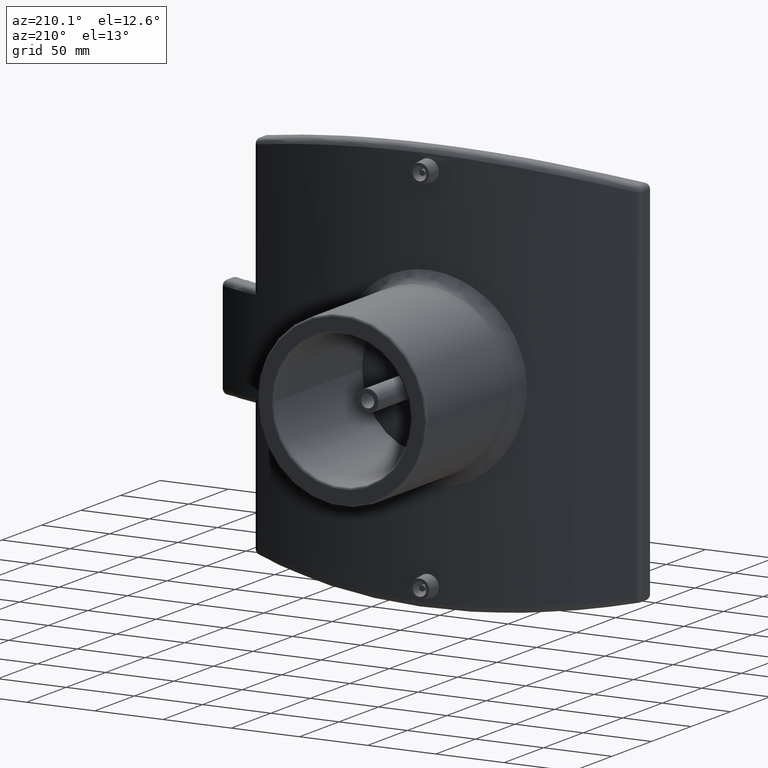
[diagram: clean part render]
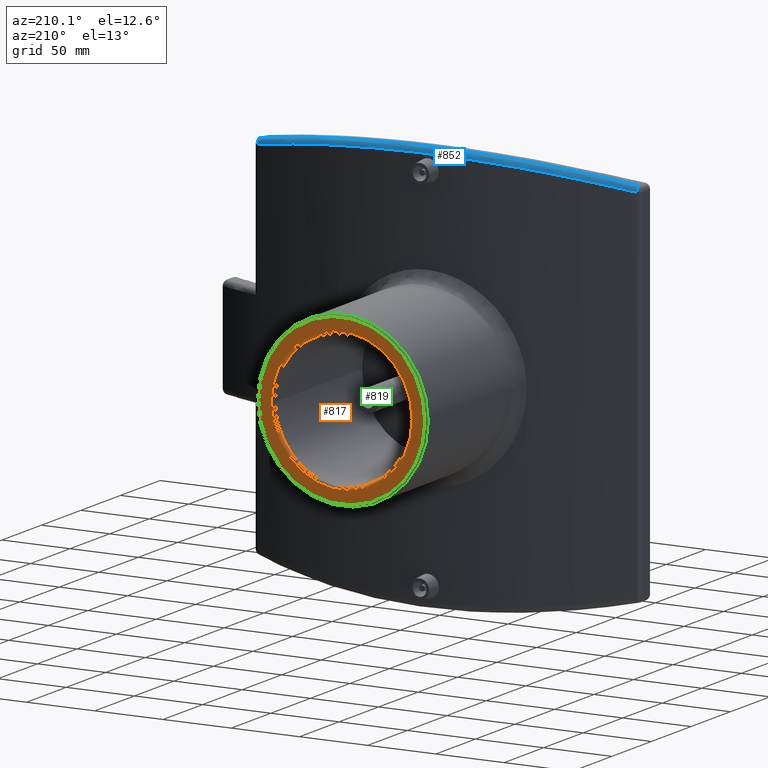
[diagram: same view with three faces highlighted in distinct colors, each labeled with its STEP entity id]
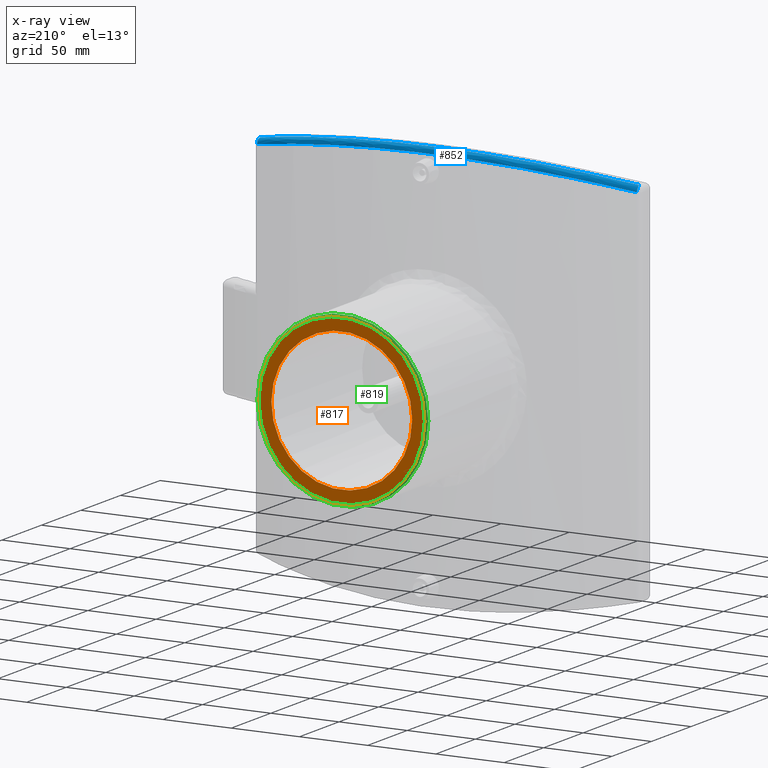
[diagram: x-ray of the same camera — body ghosted, the three highlighted faces saturated]
A machine part, auxiliary view with three faces highlighted in distinct colors.
The next image is the same camera in x-ray (body ghosted, the three faces saturated) — at least one of them is partly hidden behind the body in this view.
Their STEP definitions:

[orange] entity #817 — the highlighted planar face has unit normal (0, 1, 0).
#142=PLANE('',#887);
#157=FACE_BOUND('',#248,.T.);
#180=FACE_OUTER_BOUND('',#247,.T.);
#247=EDGE_LOOP('',(#584));
#248=EDGE_LOOP('',(#585));
#335=CIRCLE('',#886,51.6);
#336=CIRCLE('',#888,60.9);
#398=VERTEX_POINT('',#1292);
#399=VERTEX_POINT('',#1295);
#469=EDGE_CURVE('',#398,#398,#335,.T.);
#470=EDGE_CURVE('',#399,#399,#336,.T.);
#584=ORIENTED_EDGE('',*,*,#470,.F.);
#585=ORIENTED_EDGE('',*,*,#469,.F.);
#817=ADVANCED_FACE('',(#180,#157),#142,.T.);
#886=AXIS2_PLACEMENT_3D('',#1293,#1014,#1015);
#887=AXIS2_PLACEMENT_3D('',#1294,#1016,#1017);
#888=AXIS2_PLACEMENT_3D('',#1296,#1018,#1019);
#1014=DIRECTION('center_axis',(0.,1.,0.));
#1015=DIRECTION('ref_axis',(1.,0.,0.));
#1016=DIRECTION('center_axis',(0.,1.,0.));
#1017=DIRECTION('ref_axis',(0.,0.,1.));
#1018=DIRECTION('center_axis',(0.,-1.,0.));
#1019=DIRECTION('ref_axis',(1.,0.,0.));
#1292=CARTESIAN_POINT('',(-51.6,524.,6.31917748360034E-15));
#1293=CARTESIAN_POINT('Origin',(0.,524.,0.));
#1294=CARTESIAN_POINT('Origin',(2.53261750324951E-15,524.,-9.473903143468E-16));
#1295=CARTESIAN_POINT('',(-60.9,524.,-7.45809900680738E-15));
#1296=CARTESIAN_POINT('Origin',(0.,524.,0.));

[blue] entity #852 — the highlighted face is a freeform B-spline surface patch.
#91=B_SPLINE_SURFACE_WITH_KNOTS('',3,3,((#1905,#1906,#1907,#1908,#1909,
#1910,#1911,#1912,#1913,#1914),(#1915,#1916,#1917,#1918,#1919,#1920,#1921,
#1922,#1923,#1924),(#1925,#1926,#1927,#1928,#1929,#1930,#1931,#1932,#1933,
#1934),(#1935,#1936,#1937,#1938,#1939,#1940,#1941,#1942,#1943,#1944),(#1945,
#1946,#1947,#1948,#1949,#1950,#1951,#1952,#1953,#1954)),.UNSPECIFIED.,.F.,
 .F.,.F.,(4,1,4),(4,1,1,1,1,1,1,4),(0.,0.571428571428571,1.),(1.40376582378853,
5.443916145348,9.48406646690747,13.524216788467,17.5643671100264,21.6045174315859,
25.6446677531454,29.6848180747049),.UNSPECIFIED.);
#98=B_SPLINE_CURVE_WITH_KNOTS('',3,(#1570,#1571,#1572,#1573,#1574,#1575,
#1576,#1577,#1578,#1579),.UNSPECIFIED.,.F.,.F.,(4,1,1,1,1,1,1,4),(-29.6848180747049,
-25.6446677531454,-21.6045174315859,-17.5643671100264,-13.524216788467,
-9.48406646690747,-5.443916145348,-1.40376582378853),.UNSPECIFIED.);
#105=B_SPLINE_CURVE_WITH_KNOTS('',3,(#1955,#1956,#1957,#1958,#1959,#1960,
#1961,#1962,#1963,#1964),.UNSPECIFIED.,.F.,.F.,(4,1,1,1,1,1,1,4),(1.40376582378853,
5.443916145348,9.48406646690747,13.524216788467,17.5643671100264,21.6045174315859,
25.6446677531454,29.6848180747049),.UNSPECIFIED.);
#215=FACE_OUTER_BOUND('',#302,.T.);
#302=EDGE_LOOP('',(#681,#682,#683,#684));
#368=CIRCLE('',#946,4.00000000000002);
#381=CIRCLE('',#965,4.00000000000003);
#409=VERTEX_POINT('',#1567);
#410=VERTEX_POINT('',#1569);
#441=VERTEX_POINT('',#1870);
#452=VERTEX_POINT('',#1902);
#481=EDGE_CURVE('',#410,#409,#98,.T.);
#518=EDGE_CURVE('',#409,#441,#368,.F.);
#533=EDGE_CURVE('',#452,#410,#381,.F.);
#535=EDGE_CURVE('',#441,#452,#105,.T.);
#681=ORIENTED_EDGE('',*,*,#533,.T.);
#682=ORIENTED_EDGE('',*,*,#481,.T.);
#683=ORIENTED_EDGE('',*,*,#518,.T.);
#684=ORIENTED_EDGE('',*,*,#535,.T.);
#852=ADVANCED_FACE('',(#215),#91,.F.);
#946=AXIS2_PLACEMENT_3D('',#1871,#1139,#1140);
#965=AXIS2_PLACEMENT_3D('',#1903,#1179,#1180);
#1139=DIRECTION('center_axis',(-0.924407265742549,-0.328842246100135,-0.193220040943486));
#1140=DIRECTION('ref_axis',(-0.335158150851565,0.942161883074113,0.));
#1179=DIRECTION('center_axis',(0.924407265742537,-0.328842246100144,-0.193220040943531));
#1180=DIRECTION('ref_axis',(0.204598832189958,0.,0.978845911196704));
#1567=CARTESIAN_POINT('',(-139.090632603403,390.997181475756,131.757613074014));
#1569=CARTESIAN_POINT('',(139.09063260341,390.997181475753,131.757613074014));
#1570=CARTESIAN_POINT('Ctrl Pts',(139.09063260341,390.997181475753,131.757613074014));
#1571=CARTESIAN_POINT('Ctrl Pts',(126.519619840078,395.469106595822,134.359885811923));
#1572=CARTESIAN_POINT('Ctrl Pts',(100.833542230235,403.239687862746,138.939302310598));
#1573=CARTESIAN_POINT('Ctrl Pts',(61.0289804996453,411.160089339478,143.680141816067));
#1574=CARTESIAN_POINT('Ctrl Pts',(20.4299098443042,415.167026397045,146.100938434617));
#1575=CARTESIAN_POINT('Ctrl Pts',(-20.4298369698659,415.166726763724,146.100589001554));
#1576=CARTESIAN_POINT('Ctrl Pts',(-61.0304030310194,411.160253956872,143.680393743337));
#1577=CARTESIAN_POINT('Ctrl Pts',(-100.834195039831,403.239244715472,138.938929959963));
#1578=CARTESIAN_POINT('Ctrl Pts',(-126.519711970523,395.469073821974,134.359866740384));
#1579=CARTESIAN_POINT('Ctrl Pts',(-139.090632603403,390.997181475756,131.757613074014));
#1870=CARTESIAN_POINT('',(-138.568395328756,387.22853394346,135.672996718801));
#1871=CARTESIAN_POINT('Origin',(-137.749999999996,387.22853394346,131.757613074014));
#1902=CARTESIAN_POINT('',(138.568395328763,387.228533943457,135.672996718801));
#1903=CARTESIAN_POINT('Origin',(137.750000000004,387.228533943457,131.757613074014));
#1905=CARTESIAN_POINT('Ctrl Pts',(-138.568395328756,387.228533943459,135.672996718801));
#1906=CARTESIAN_POINT('Ctrl Pts',(-126.044674160055,391.657323712847,138.290710800741));
#1907=CARTESIAN_POINT('Ctrl Pts',(-100.455597472021,399.352601392913,142.896978985467));
#1908=CARTESIAN_POINT('Ctrl Pts',(-60.8012549514332,407.197263557287,147.666612582357));
#1909=CARTESIAN_POINT('Ctrl Pts',(-20.3531299898133,411.165119758772,150.1011866173));
#1910=CARTESIAN_POINT('Ctrl Pts',(20.3532025906333,411.165416504061,150.101538126402));
#1911=CARTESIAN_POINT('Ctrl Pts',(60.7998377611729,407.197100526566,147.666359158345));
#1912=CARTESIAN_POINT('Ctrl Pts',(100.4549471135,399.353040268889,142.897353548298));
#1913=CARTESIAN_POINT('Ctrl Pts',(126.044582375528,391.657356170802,138.290729985588));
#1914=CARTESIAN_POINT('Ctrl Pts',(138.568395328763,387.228533943457,135.672996718801));
#1915=CARTESIAN_POINT('Ctrl Pts',(-138.936796978407,388.309391961421,135.595993232927));
#1916=CARTESIAN_POINT('Ctrl Pts',(-126.385251652634,392.75874879433,138.22713303341));
#1917=CARTESIAN_POINT('Ctrl Pts',(-100.735610300533,400.490401480759,142.856819067967));
#1918=CARTESIAN_POINT('Ctrl Pts',(-60.9756414166283,408.374540282723,147.6533616287));
#1919=CARTESIAN_POINT('Ctrl Pts',(-20.4124107713335,412.362742627799,150.101721234607));
#1920=CARTESIAN_POINT('Ctrl Pts',(20.4125342374707,412.36313409812,150.102252448013));
#1921=CARTESIAN_POINT('Ctrl Pts',(60.9741029717174,408.374308499327,147.652975795759));
#1922=CARTESIAN_POINT('Ctrl Pts',(100.735137128866,400.490850466149,142.857210705906));
#1923=CARTESIAN_POINT('Ctrl Pts',(126.385159664189,392.758781403017,138.227152316651));
#1924=CARTESIAN_POINT('Ctrl Pts',(138.936796978414,388.309391961419,135.595993232927));
#1925=CARTESIAN_POINT('Ctrl Pts',(-139.388592970548,390.183696492851,134.567595695837));
#1926=CARTESIAN_POINT('Ctrl Pts',(-126.802731841336,394.667599845869,137.201802933369));
#1927=CARTESIAN_POINT('Ctrl Pts',(-101.077398147305,402.462094982776,141.839121172993));
#1928=CARTESIAN_POINT('Ctrl Pts',(-61.1882195676508,410.412728205255,146.643678168482));
#1929=CARTESIAN_POINT('Ctrl Pts',(-20.4845299526663,414.435853947221,149.09708649421));
#1930=CARTESIAN_POINT('Ctrl Pts',(20.4845993421297,414.436149555662,149.097429380408));
#1931=CARTESIAN_POINT('Ctrl Pts',(61.1868009245948,410.412566155938,146.64343106239));
#1932=CARTESIAN_POINT('Ctrl Pts',(101.076727004386,402.462543670323,141.839499688933));
#1933=CARTESIAN_POINT('Ctrl Pts',(126.802639601395,394.667632707743,137.201822239091));
#1934=CARTESIAN_POINT('Ctrl Pts',(139.388592970555,390.183696492849,134.567595695836));
#1935=CARTESIAN_POINT('Ctrl Pts',(-139.246896479438,390.941593245455,132.599819814549));
#1936=CARTESIAN_POINT('Ctrl Pts',(-126.666568586152,395.422582615039,135.211549953449));
#1937=CARTESIAN_POINT('Ctrl Pts',(-100.958228517898,403.209654149806,139.808174562169));
#1938=CARTESIAN_POINT('Ctrl Pts',(-61.1096225821967,411.150225794714,144.56842044522));
#1939=CARTESIAN_POINT('Ctrl Pts',(-20.457089416485,415.167148720794,146.998609428413));
#1940=CARTESIAN_POINT('Ctrl Pts',(20.4571673391366,415.167497668691,146.998918939567));
#1941=CARTESIAN_POINT('Ctrl Pts',(61.1081867189751,411.15002453714,144.56819800229));
#1942=CARTESIAN_POINT('Ctrl Pts',(100.957592032215,403.210104162502,139.808545734061));
#1943=CARTESIAN_POINT('Ctrl Pts',(126.666476386763,395.422615455557,135.211569094439));
#1944=CARTESIAN_POINT('Ctrl Pts',(139.246896479445,390.941593245453,132.599819814549));
#1945=CARTESIAN_POINT('Ctrl Pts',(-139.090632603403,390.997181475756,131.757613074014));
#1946=CARTESIAN_POINT('Ctrl Pts',(-126.519711970523,395.469073821974,134.359866740384));
#1947=CARTESIAN_POINT('Ctrl Pts',(-100.834195039831,403.239244715472,138.938929959963));
#1948=CARTESIAN_POINT('Ctrl Pts',(-61.0304030310194,411.160253956872,143.680393743337));
#1949=CARTESIAN_POINT('Ctrl Pts',(-20.4298369698659,415.166726763724,146.100589001554));
#1950=CARTESIAN_POINT('Ctrl Pts',(20.4299098443042,415.167026397045,146.100938434617));
#1951=CARTESIAN_POINT('Ctrl Pts',(61.0289804996453,411.160089339478,143.680141816067));
#1952=CARTESIAN_POINT('Ctrl Pts',(100.833542230235,403.239687862746,138.939302310598));
#1953=CARTESIAN_POINT('Ctrl Pts',(126.519619840078,395.469106595822,134.359885811923));
#1954=CARTESIAN_POINT('Ctrl Pts',(139.09063260341,390.997181475753,131.757613074014));
#1955=CARTESIAN_POINT('Ctrl Pts',(-138.568395328756,387.228533943459,135.672996718801));
#1956=CARTESIAN_POINT('Ctrl Pts',(-126.044674160055,391.657323712847,138.290710800741));
#1957=CARTESIAN_POINT('Ctrl Pts',(-100.455597472021,399.352601392913,142.896978985467));
#1958=CARTESIAN_POINT('Ctrl Pts',(-60.8012549514332,407.197263557287,147.666612582357));
#1959=CARTESIAN_POINT('Ctrl Pts',(-20.3531299898133,411.165119758772,150.1011866173));
#1960=CARTESIAN_POINT('Ctrl Pts',(20.3532025906333,411.165416504061,150.101538126402));
#1961=CARTESIAN_POINT('Ctrl Pts',(60.7998377611729,407.197100526566,147.666359158345));
#1962=CARTESIAN_POINT('Ctrl Pts',(100.4549471135,399.353040268889,142.897353548298));
#1963=CARTESIAN_POINT('Ctrl Pts',(126.044582375528,391.657356170802,138.290729985588));
#1964=CARTESIAN_POINT('Ctrl Pts',(138.568395328763,387.228533943457,135.672996718801));

[green] entity #819 — the highlighted toroidal blend (fillet) surface has major radius 60.9 mm and minor (blend) radius 1.6 mm.
#159=FACE_BOUND('',#252,.T.);
#182=FACE_OUTER_BOUND('',#251,.T.);
#251=EDGE_LOOP('',(#588));
#252=EDGE_LOOP('',(#589));
#336=CIRCLE('',#888,60.9);
#337=CIRCLE('',#891,62.5);
#399=VERTEX_POINT('',#1295);
#401=VERTEX_POINT('',#1366);
#470=EDGE_CURVE('',#399,#399,#336,.T.);
#472=EDGE_CURVE('',#401,#401,#337,.T.);
#588=ORIENTED_EDGE('',*,*,#470,.T.);
#589=ORIENTED_EDGE('',*,*,#472,.T.);
#811=TOROIDAL_SURFACE('',#890,60.9,1.6);
#819=ADVANCED_FACE('',(#182,#159),#811,.T.);
#888=AXIS2_PLACEMENT_3D('',#1296,#1018,#1019);
#890=AXIS2_PLACEMENT_3D('',#1365,#1022,#1023);
#891=AXIS2_PLACEMENT_3D('',#1367,#1024,#1025);
#1018=DIRECTION('center_axis',(0.,-1.,0.));
#1019=DIRECTION('ref_axis',(1.,0.,0.));
#1022=DIRECTION('center_axis',(0.,-1.,0.));
#1023=DIRECTION('ref_axis',(0.,0.,-1.));
#1024=DIRECTION('center_axis',(0.,1.,0.));
#1025=DIRECTION('ref_axis',(1.,0.,0.));
#1295=CARTESIAN_POINT('',(-60.9,524.,-7.45809900680738E-15));
#1296=CARTESIAN_POINT('Origin',(0.,524.,0.));
#1365=CARTESIAN_POINT('Origin',(0.,522.4,0.));
#1366=CARTESIAN_POINT('',(-62.5,522.4,7.65404249467096E-15));
#1367=CARTESIAN_POINT('Origin',(0.,522.4,0.));